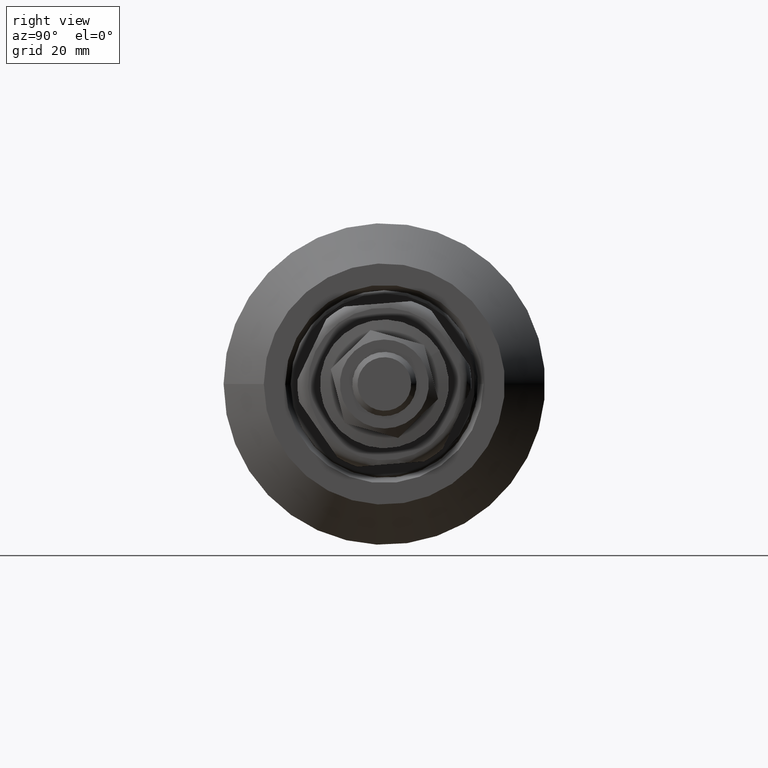
[diagram: clean part render]
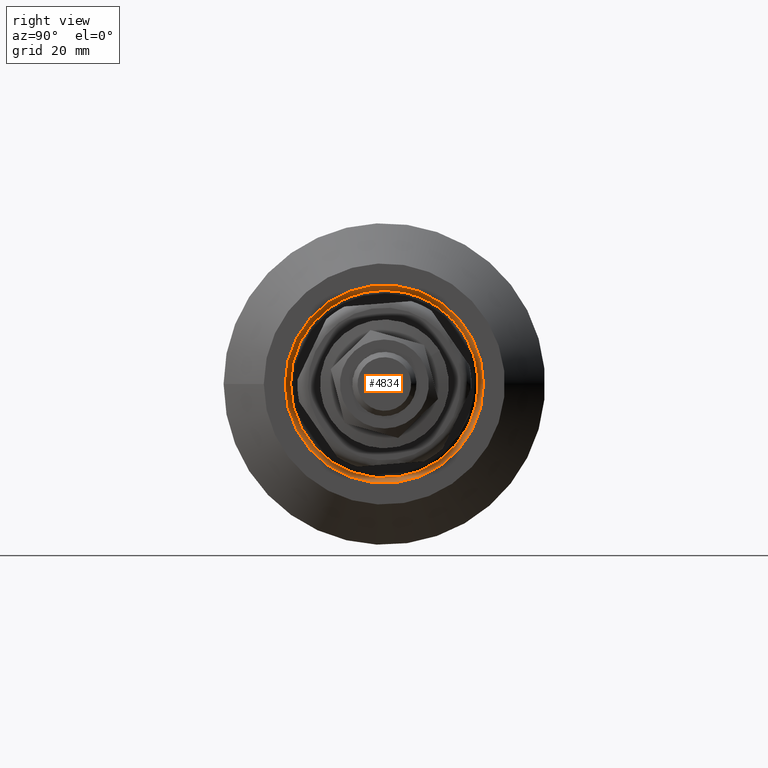
[diagram: same view with one face highlighted and labeled with its STEP entity id]
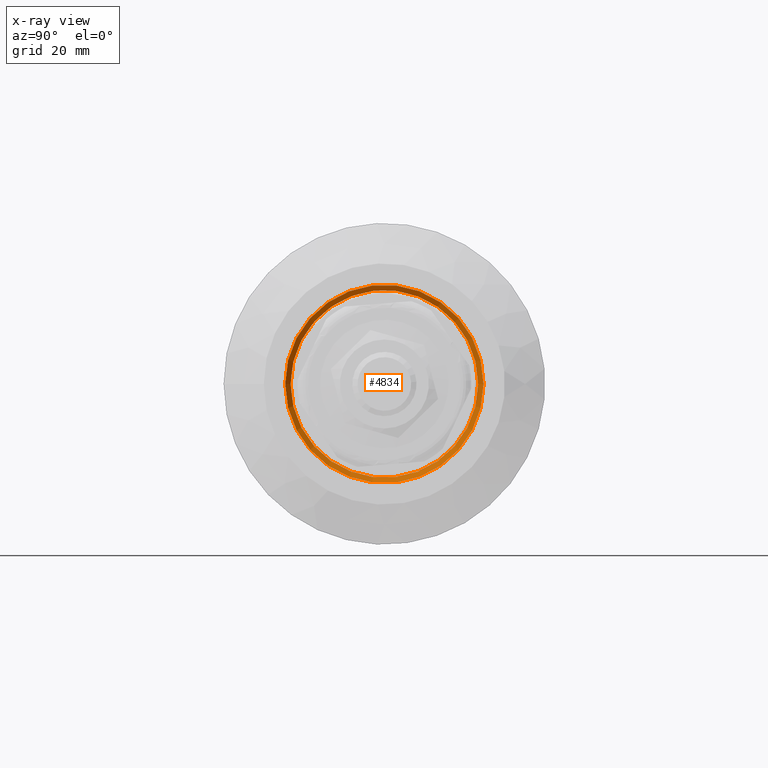
[diagram: x-ray of the same camera — body ghosted, the highlighted face saturated]
A machine part, right view. The second image highlights one B-rep face of the part: STEP entity #4834.
The next image is the same camera in x-ray: the body ghosted, the highlighted face saturated — about 0% of this face is hidden behind the body in this view.
In plain terms, the highlighted conical surface has half-angle 45 deg.
Its self-contained STEP definition (entity closure, byte-faithful):
#578=FACE_OUTER_BOUND('',#850,.T.);
#850=EDGE_LOOP('',(#3293,#3294,#3295,#3296,#3297));
#1153=LINE('',#7303,#1443);
#1443=VECTOR('',#5892,18.);
#1736=CIRCLE('',#5312,17.5);
#1737=CIRCLE('',#5313,17.5);
#1738=CIRCLE('',#5314,18.5);
#2003=VERTEX_POINT('',#7298);
#2004=VERTEX_POINT('',#7299);
#2005=VERTEX_POINT('',#7302);
#2522=EDGE_CURVE('',#2003,#2004,#1736,.T.);
#2523=EDGE_CURVE('',#2004,#2003,#1737,.T.);
#2524=EDGE_CURVE('',#2003,#2005,#1153,.T.);
#2525=EDGE_CURVE('',#2005,#2005,#1738,.T.);
#3293=ORIENTED_EDGE('',*,*,#2522,.T.);
#3294=ORIENTED_EDGE('',*,*,#2523,.T.);
#3295=ORIENTED_EDGE('',*,*,#2524,.T.);
#3296=ORIENTED_EDGE('',*,*,#2525,.T.);
#3297=ORIENTED_EDGE('',*,*,#2524,.F.);
#4814=CONICAL_SURFACE('',#5311,18.,0.785398163397448);
#4834=ADVANCED_FACE('',(#578),#4814,.F.);
#5311=AXIS2_PLACEMENT_3D('',#7297,#5886,#5887);
#5312=AXIS2_PLACEMENT_3D('',#7300,#5888,#5889);
#5313=AXIS2_PLACEMENT_3D('',#7301,#5890,#5891);
#5314=AXIS2_PLACEMENT_3D('',#7304,#5893,#5894);
#5886=DIRECTION('center_axis',(1.,0.,0.));
#5887=DIRECTION('ref_axis',(0.,-1.,0.));
#5888=DIRECTION('center_axis',(-1.,0.,0.));
#5889=DIRECTION('ref_axis',(0.,-1.,0.));
#5890=DIRECTION('center_axis',(-1.,0.,0.));
#5891=DIRECTION('ref_axis',(0.,-1.,0.));
#5892=DIRECTION('',(0.707106781186547,0.707106781186547,-8.65956056235493E-17));
#5893=DIRECTION('center_axis',(1.,0.,0.));
#5894=DIRECTION('ref_axis',(0.,-1.,0.));
#7297=CARTESIAN_POINT('Origin',(19.5,0.,0.));
#7298=CARTESIAN_POINT('',(19.,17.5,-2.14313189850787E-15));
#7299=CARTESIAN_POINT('',(19.,-17.5,-2.14313189850787E-15));
#7300=CARTESIAN_POINT('Origin',(19.,0.,0.));
#7301=CARTESIAN_POINT('Origin',(19.,0.,0.));
#7302=CARTESIAN_POINT('',(20.,18.5,2.2655965784226E-15));
#7303=CARTESIAN_POINT('',(19.5,18.,-2.20436423846524E-15));
#7304=CARTESIAN_POINT('Origin',(20.,0.,0.));